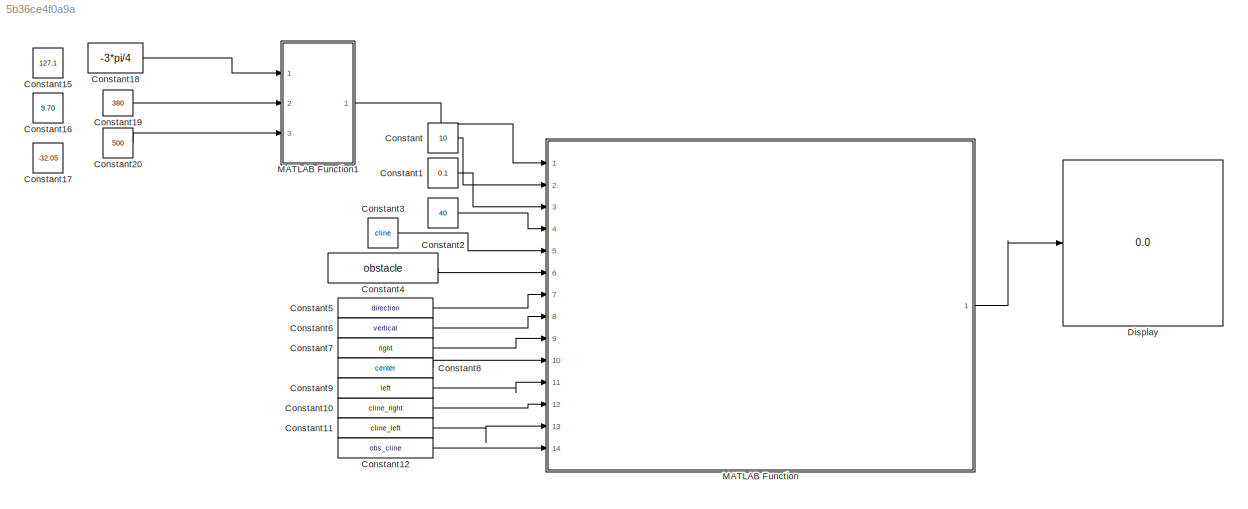
MODEL slx_5b36ce4f0a9a
KIND model
CONFIG AbsTol = 1e-6
CONFIG EnableMultiTasking = off
CONFIG FixedStep = 0.001
CONFIG InitFcn = %set_param(gcs,'StopTime','inf');\n%Initial;\n\n\ndatainitialise_Astar1;\n
CONFIG MaxStep = auto
CONFIG MinStep = auto
CONFIG PreLoadFcn = mvs = version;\nfvs = str2double(mvs(1:3));\n\nif fvs >= 8.4 \n  addpath('Extensions\Simulink_DS\DS_SF_Library84');\nelse\n  addpath('Extensions\Simulink_DS\DS_SF_Library');\nend \n
CONFIG RelTol = 1e-3
CONFIG SampleTimeConstraint = Unconstrained
CONFIG Solver = ode5
CONFIG SolverName = ode5
CONFIG StartTime = 0
CONFIG StopTime = 6
BLOCK [Constant] Constant
  Value = 10
BLOCK [Constant] Constant1
  Value = 0.1
BLOCK [Constant] Constant10
  Value = cline_right
BLOCK [Constant] Constant11
  Value = cline_left
BLOCK [Constant] Constant12
  Value = obs_cline
BLOCK [Constant] Constant15
  Commented = on
  Value = 127.1
BLOCK [Constant] Constant16
  Commented = on
  Value = 9.70
BLOCK [Constant] Constant17
  Commented = on
  Value = -32.05
BLOCK [Constant] Constant18
  Value = -3*pi/4
BLOCK [Constant] Constant19
  Value = 380
BLOCK [Constant] Constant2
  Value = 40
BLOCK [Constant] Constant20
  Value = 500
BLOCK [Constant] Constant3
  Value = cline
BLOCK [Constant] Constant4
  Value = obstacle
BLOCK [Constant] Constant5
  Value = direction
BLOCK [Constant] Constant6
  Value = vertical
BLOCK [Constant] Constant7
  Value = right
BLOCK [Constant] Constant8
  Value = center
BLOCK [Constant] Constant9
  Value = left
BLOCK [Display] Display
  Decimation = 1
  Ports = [1]
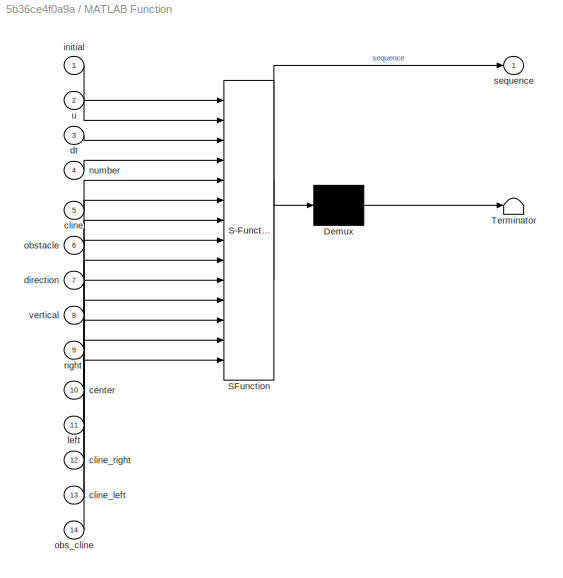
BLOCK [SubSystem] MATLAB Function
  ErrorFcn = Stateflow.Translate.translate
  PermitHierarchicalResolution = ExplicitOnly
  Ports = [14, 1]
  RequestExecContextInheritance = off
  SFBlockType = MATLAB Function
  TreatAsAtomicUnit = on
BLOCK [Demux] MATLAB Function/ Demux 
  Outputs = 1
  Ports = [1, 1]
BLOCK [S-Function] MATLAB Function/ SFunction 
  EnableBusSupport = on
  FunctionName = sf_sfun
  PortCounts = [14 2]
  Ports = [14, 2]
  SFcnIsStateOwnerBlock = off
  SFunctionDeploymentMode = off
  Tag = Stateflow S-Function best_first_search 2
BLOCK [Terminator] MATLAB Function/ Terminator 
BLOCK [Inport] MATLAB Function/center
  IconDisplay = Port number
  Port = 10
BLOCK [Inport] MATLAB Function/cline
  IconDisplay = Port number
  Port = 5
BLOCK [Inport] MATLAB Function/cline_left
  IconDisplay = Port number
  Port = 13
BLOCK [Inport] MATLAB Function/cline_right
  IconDisplay = Port number
  Port = 12
BLOCK [Inport] MATLAB Function/direction
  IconDisplay = Port number
  Port = 7
BLOCK [Inport] MATLAB Function/dt
  IconDisplay = Port number
  Port = 3
BLOCK [Inport] MATLAB Function/initial
  IconDisplay = Port number
BLOCK [Inport] MATLAB Function/left
  IconDisplay = Port number
  Port = 11
BLOCK [Inport] MATLAB Function/number
  IconDisplay = Port number
  Port = 4
BLOCK [Inport] MATLAB Function/obs_cline
  IconDisplay = Port number
  Port = 14
BLOCK [Inport] MATLAB Function/obstacle
  IconDisplay = Port number
  Port = 6
BLOCK [Inport] MATLAB Function/right
  IconDisplay = Port number
  Port = 9
BLOCK [Outport] MATLAB Function/sequence
  IconDisplay = Port number
BLOCK [Inport] MATLAB Function/u
  IconDisplay = Port number
  Port = 2
BLOCK [Inport] MATLAB Function/vertical
  IconDisplay = Port number
  Port = 8
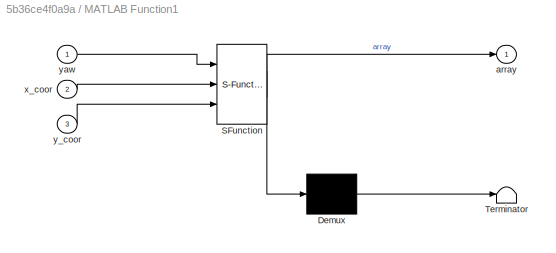
BLOCK [SubSystem] MATLAB Function1
  ErrorFcn = Stateflow.Translate.translate
  PermitHierarchicalResolution = ExplicitOnly
  Ports = [3, 1]
  RequestExecContextInheritance = off
  SFBlockType = MATLAB Function
  TreatAsAtomicUnit = on
BLOCK [Demux] MATLAB Function1/ Demux 
  Outputs = 1
  Ports = [1, 1]
BLOCK [S-Function] MATLAB Function1/ SFunction 
  EnableBusSupport = on
  FunctionName = sf_sfun
  PortCounts = [3 2]
  Ports = [3, 2]
  SFcnIsStateOwnerBlock = off
  SFunctionDeploymentMode = off
  Tag = Stateflow S-Function best_first_search 1
BLOCK [Terminator] MATLAB Function1/ Terminator 
BLOCK [Outport] MATLAB Function1/array
  IconDisplay = Port number
BLOCK [Inport] MATLAB Function1/x_coor
  IconDisplay = Port number
  Port = 2
BLOCK [Inport] MATLAB Function1/y_coor
  IconDisplay = Port number
  Port = 3
BLOCK [Inport] MATLAB Function1/yaw
  IconDisplay = Port number
LINE Constant10:1 -> MATLAB Function:12
LINE Constant11:1 -> MATLAB Function:13
LINE Constant12:1 -> MATLAB Function:14
LINE Constant18:1 -> MATLAB Function1:1
LINE Constant19:1 -> MATLAB Function1:2
LINE Constant1:1 -> MATLAB Function:3
LINE Constant20:1 -> MATLAB Function1:3
LINE Constant2:1 -> MATLAB Function:4
LINE Constant3:1 -> MATLAB Function:5
LINE Constant4:1 -> MATLAB Function:6
LINE Constant5:1 -> MATLAB Function:7
LINE Constant6:1 -> MATLAB Function:8
LINE Constant7:1 -> MATLAB Function:9
LINE Constant8:1 -> MATLAB Function:10
LINE Constant9:1 -> MATLAB Function:11
LINE Constant:1 -> MATLAB Function:2
LINE MATLAB Function1:1 -> MATLAB Function:1
LINE MATLAB Function:1 -> Display:1
CHART MATLAB Function1 states=1 transitions=1
  STATE_LABEL 'eML_blk_kernel()'
  STATE_LABEL 'SCRIPT:\nfunction array = fcn(yaw,x_coor,y_coor)\n\narray = [x_coor;y_coor;yaw];\nend\n\n'
CHART MATLAB Function states=1 transitions=1
  STATE_LABEL 'eML_blk_kernel()'
  STATE_LABEL 'SCRIPT:\nfunction sequence = prediction_simulink(initial,u,dt,number,cline,obstacle,direction,vertical,right,center,left,cline_right,cline_left,obs_cline)\n\n% global cline obstacle direction vertical right center left cline_right cline_left obs_cline \n\n%% input\nrequired_length = u*dt*number;\n\n%% parameters\ncline_to_right = 3;\ncline_to_left = 9;\ncline_half = 0.65;\nsection = 300;\nentry_boundary = 40;\n...<+3608ch>'
